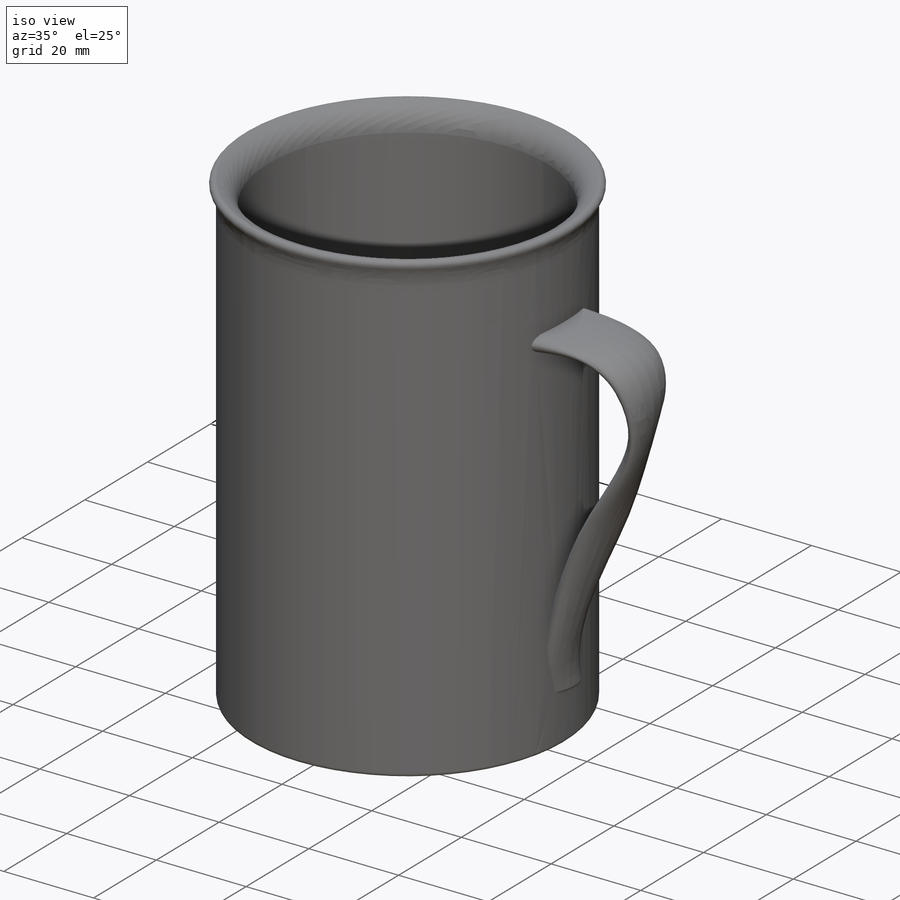
[diagram: iso view]
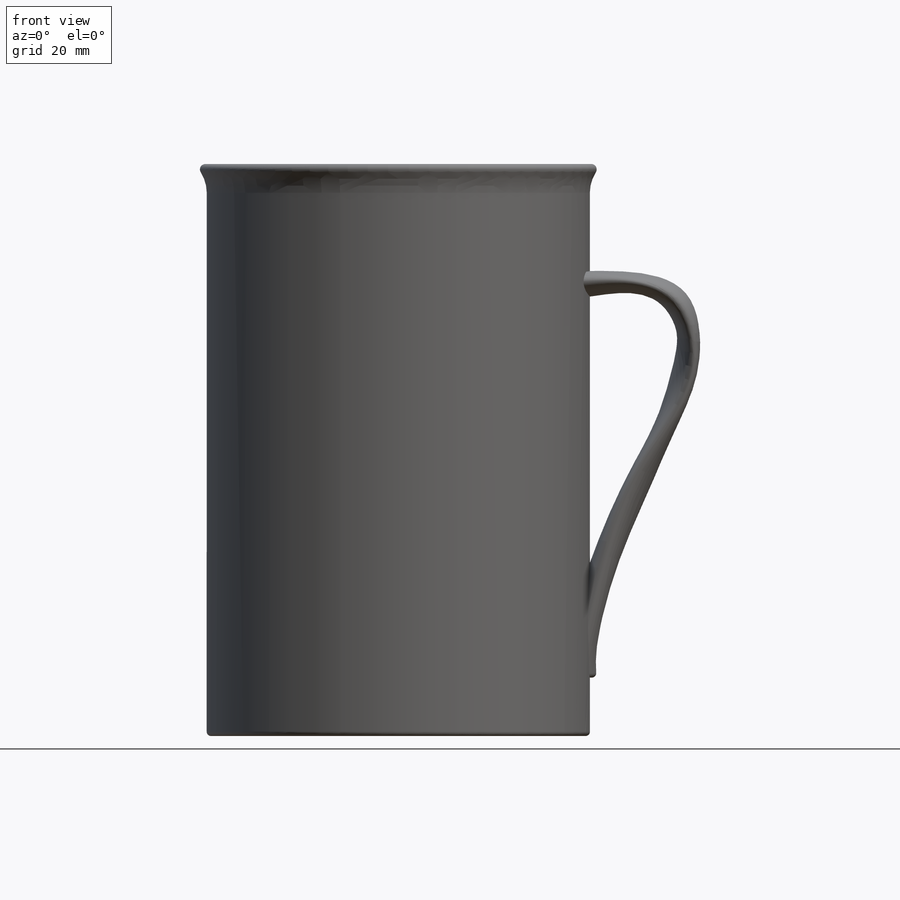
[diagram: front view]
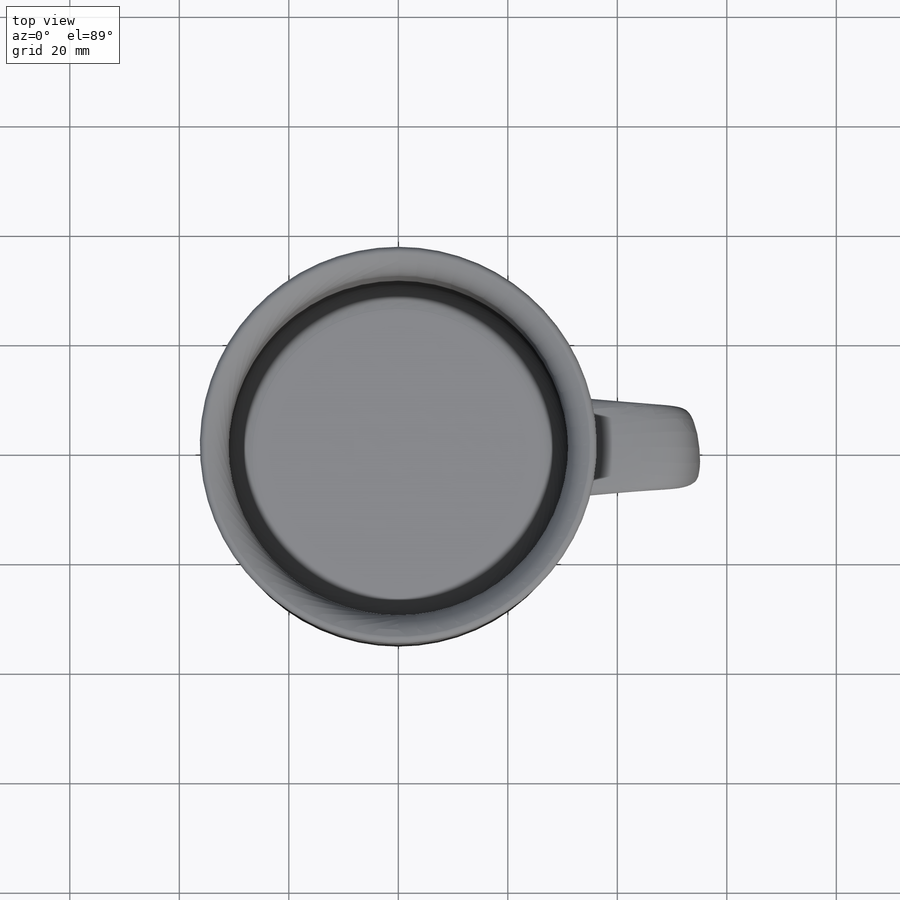
[diagram: top view]
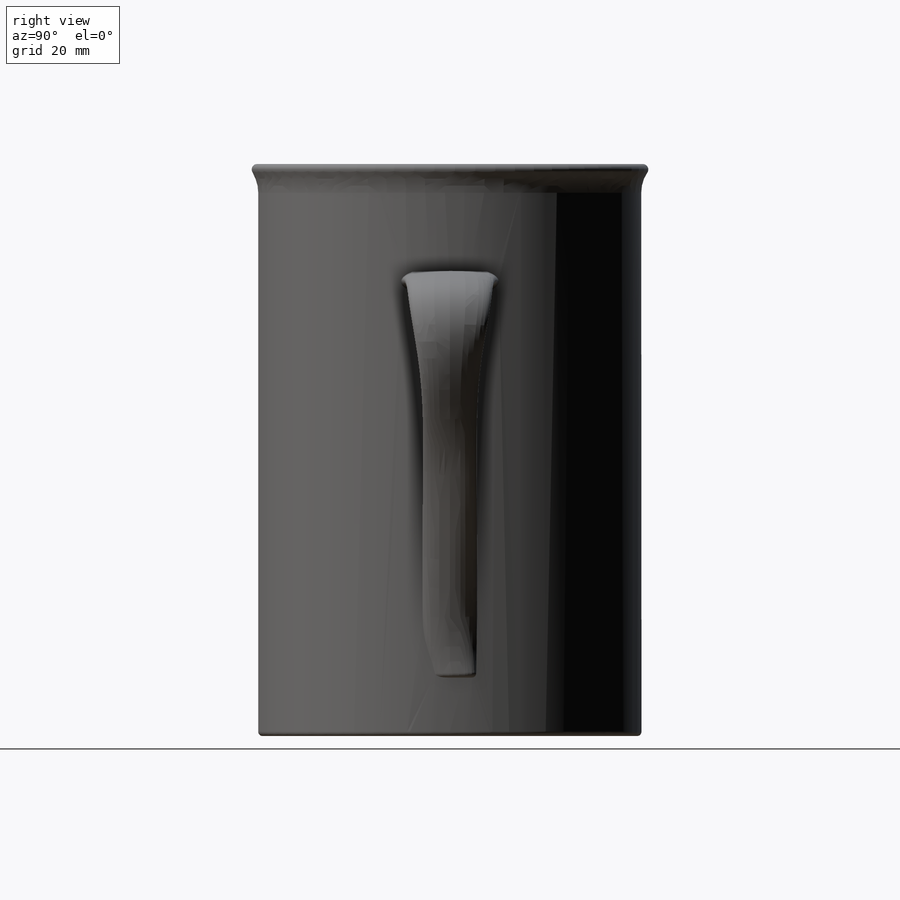
[diagram: right view]
SOLIDWORKS PART (.sldprt)
format: sldprt  version: not decoded by parser v0  size: 398,336 bytes
history: native  units: mm
features: plane x10, sketch x9, fillet x4, material x1, revolve x1 (+13 scaffold rows collapsed)
feature tree (38):
  scaffold x13  (default folders/planes/origin — collapsed)
  material  "材质 <未指定>"
  plane  "前视基准面"
  plane  "上视基准面"
  plane  "右视基准面"
  sketch  "草图1"  dims[D1=35.0mm D2=100.0mm D4=5.0mm D3=4.0mm]
  revolve  "旋转1"  Angle=360deg
  fillet  "圆角2"  Radius=0.8mm
  fillet  "圆角3"  Radius=3.5mm
  plane  "基准面1"  Offset=33mm
  fillet  "圆角4"  Radius=1mm
  sketch  "草图3"  dims[D1=20.0mm D2=10.0mm D3=10.0mm D4=60.0mm]
  sketch  "草图4"  dims[c1.D1=10.0mm c1.D2=20.0mm c1.D3=2.0mm c1.D4=~18.833524mm c2.D4=20.0deg c2.D5=20.0mm c3.D5=10.0deg]
  plane  "基准面2"
  plane  "基准面3"
  plane  "基准面4"
  plane  "基准面5"
  plane  "基准面6"
  sketch  "草图6"  dims[D1=2.5mm]
  sketch  "草图7"  dims[D1=2.0mm]
  sketch  "草图8"  dims[D1=1.9mm]
  sketch  "草图9"  dims[D1=2.5mm]
  sketch  "草图10"  dims[D1=2.0mm]
  plane  "基准面7"
  sketch  "草图11"  dims[D1=2.0mm]
  fillet  "圆角5"  Radius=0.8mm
decode coverage: 14 of 14 modeling features carry decoded parameters
note: ~ marks probable driven/reference dimensions
note: suppression state not decoded; provenance and decode notes live in map.json
